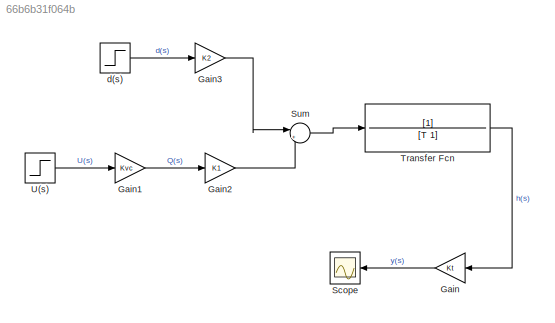
MODEL slx_66b6b31f064b
KIND model
CONFIG AbsTol = auto
CONFIG EnableMultiTasking = off
CONFIG FixedStep = auto
CONFIG MaxStep = auto
CONFIG MinStep = auto
CONFIG RelTol = 1e-3
CONFIG SampleTimeConstraint = Unconstrained
CONFIG SolverName = VariableStepAuto
CONFIG StartTime = 0.0
CONFIG StopTime = 10.0
BLOCK [Gain] Gain
  Gain = Kt
BLOCK [Gain] Gain1
  Gain = Kvc
BLOCK [Gain] Gain2
  Gain = K1
BLOCK [Gain] Gain3
  Gain = K2
BLOCK [Scope] Scope
  Floating = off
  NumInputPorts = 1
  Ports = [1]
  ScopeSpecificationString = Simulink.scopes.TimeScopeBlockCfg('CurrentConfiguration', extmgr.ConfigurationSet(extmgr.Configuration('Core','General UI',true),extmgr.Configuration('Core','Source UI',true),extmgr.Configuration('Sources','WiredSimulink',true),extmgr.Configuration('Visuals','Time Domain',true,'SerializedDisplays',{struct('MinYLimReal','-13.54102','MaxYLimReal','1.84549','YLabelReal','','MinYLimMag','0.00000','Max...<+1328ch>
BLOCK [Sum] Sum
  Inputs = |++
  Ports = [2, 1]
BLOCK [TransferFcn] Transfer Fcn
  Denominator = [T 1]
BLOCK [Step] U(s)
  Before = 100
  SampleTime = 0
BLOCK [Step] d(s)
  Before = 0.5
  SampleTime = 0
LINE Gain1:1 -> Gain2:1
LINE Gain2:1 -> Sum:2
LINE Gain3:1 -> Sum:1
LINE Gain:1 -> Scope:1
LINE Sum:1 -> Transfer Fcn:1
LINE Transfer Fcn:1 -> Gain:1
LINE U(s):1 -> Gain1:1
LINE d(s):1 -> Gain3:1
